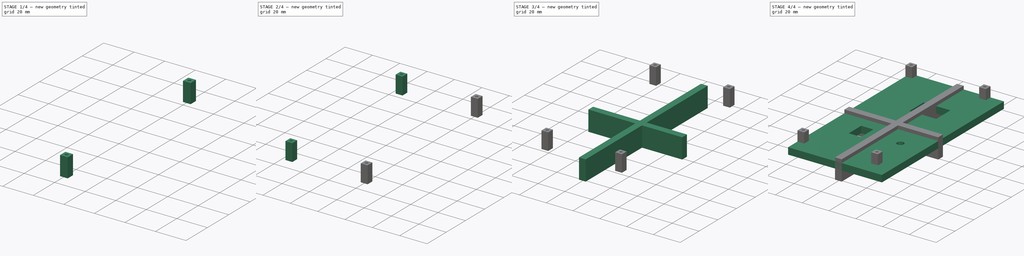
[diagram: build sequence overview — one tinted view per stage of 4, left to right]
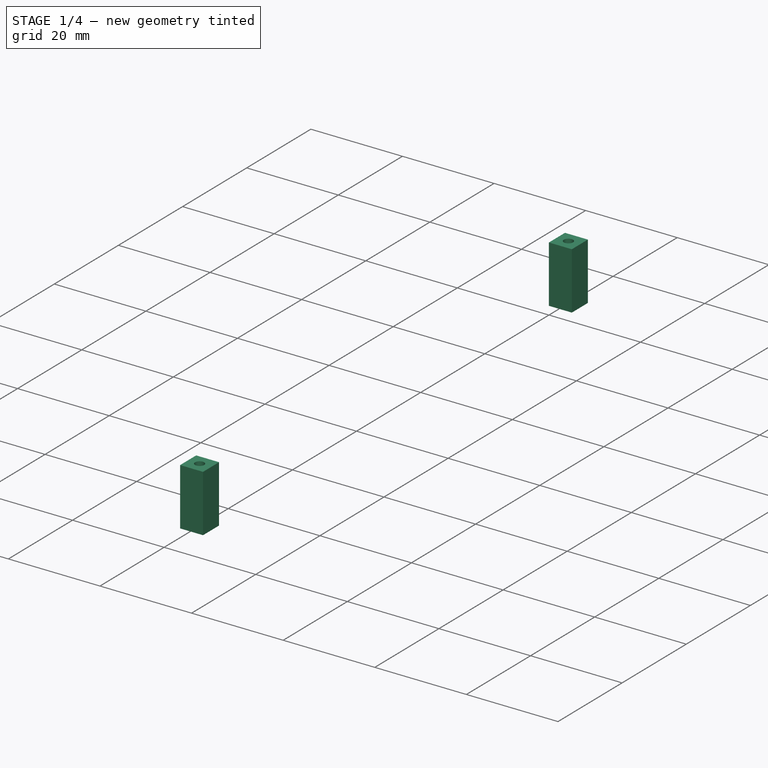
[diagram: stage 1 of 4 — iso view after this stage's code; geometry added in this stage tinted green]
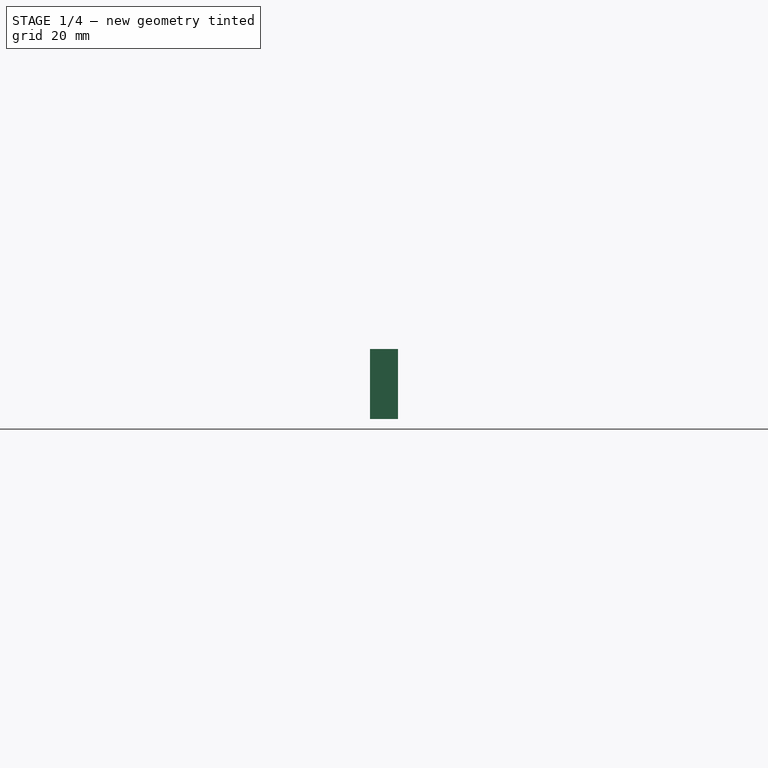
[diagram: stage 1 of 4 — front view after this stage's code; geometry added in this stage tinted green]
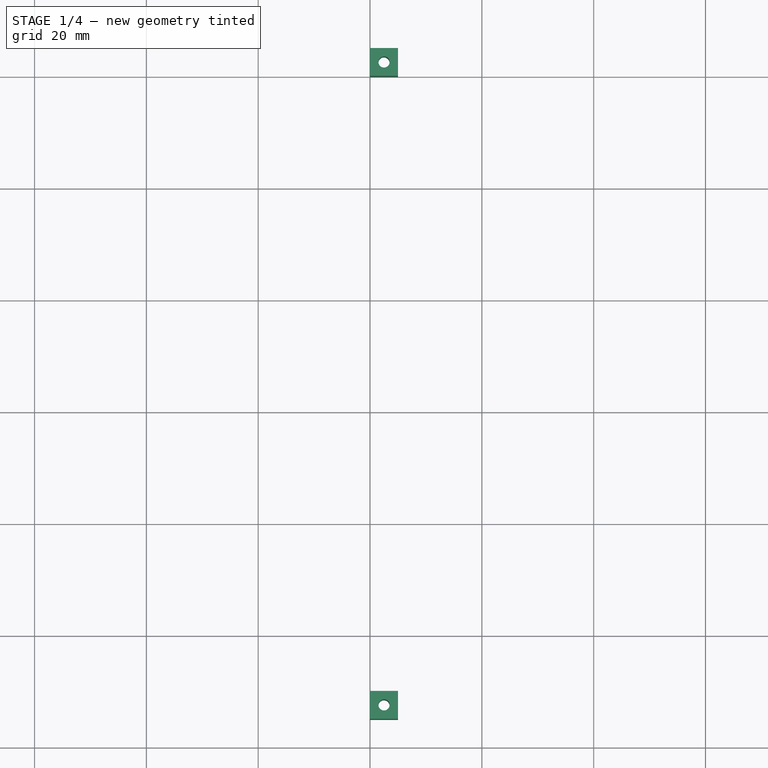
[diagram: stage 1 of 4 — top view after this stage's code; geometry added in this stage tinted green]
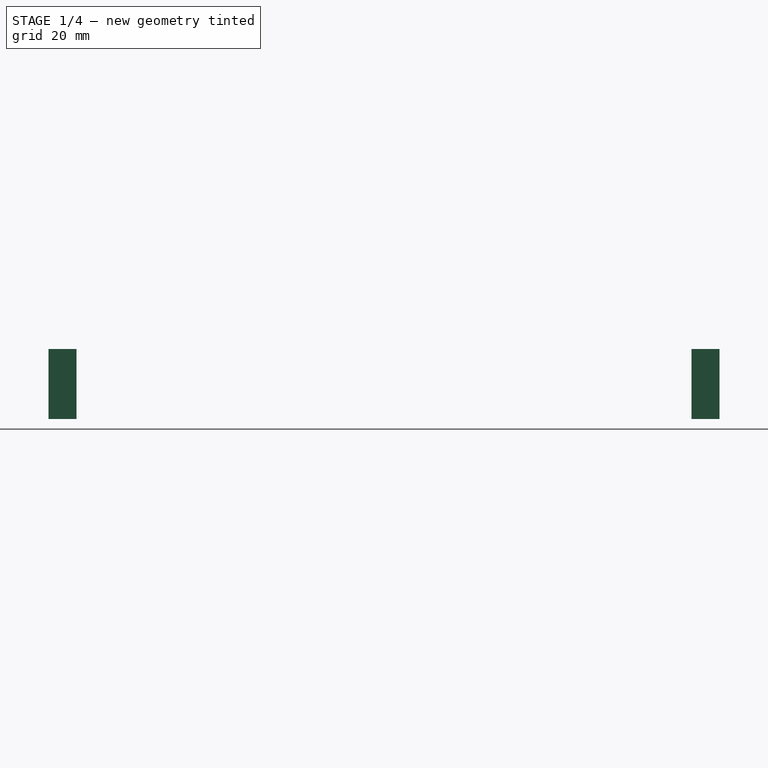
[diagram: stage 1 of 4 — right view after this stage's code; geometry added in this stage tinted green]
FCSTD DOCUMENT  (FreeCAD 0.19R24291 (Git))
Label: homework
License: All rights reserved
LicenseURL: http://en.wikipedia.org/wiki/All_rights_reserved
objects: Sketcher::SketchObject×9, PartDesign::Pad×9, PartDesign::Body×9
note: 36 computed .brp shape members not serialized (recipe doc carries the construction recipe); baked Part::Feature solids carry a one-line shape summary decoded from their .brp

FEATURE [PartDesign::Body] Body006  label="Hold left top"
  Group = -> [Sketch006,Pad006]
  Origin = -> Origin006
  Tip = -> Pad006
FEATURE [Sketcher::SketchObject] Sketch007
  FullyConstrained = true
  MapMode = 5
  Support = -> [XY_Plane008]
  sketch-geometry (5):
    g0: LineSegment StartX=20 StartY=65 StartZ=0 EndX=25 EndY=65 EndZ=0
    g1: LineSegment StartX=25 StartY=65 StartZ=0 EndX=25 EndY=60 EndZ=0
    g2: LineSegment StartX=25 StartY=60 StartZ=0 EndX=20 EndY=60 EndZ=0
    g3: LineSegment StartX=20 StartY=60 StartZ=0 EndX=20 EndY=65 EndZ=0
    g4: Circle CenterX=22.5 CenterY=62.5 CenterZ=0 NormalX=0 NormalY=0 NormalZ=1 AngleXU=0 Radius=1
  constraints (15):
    c: Coincident(g0,g1)
    c: Coincident(g1,g2)
    c: Coincident(g2,g3)
    c: Coincident(g3,g0)
    c: Horizontal(g0)
    c: Horizontal(g2)
    c: Vertical(g1)
    c: Vertical(g3)
    c: DistanceX(g-1,g0) = 20
    c: DistanceY(g-1,g2) = 60
    c: DistanceX(g0,g0) = 5
    c: DistanceY(g1,g1) = 5
    c: DistanceX(g0,g4) = 2.5
    c: DistanceY(g4,g0) = 2.5
    c: Diameter(g4) = 2
FEATURE [PartDesign::Pad] Pad007
  Direction = (1,1,1)
  Length = 12.5
  Length2 = 100
  Profile = -> Sketch007
  Type = 0
FEATURE [PartDesign::Body] Body008  label="Hold right bot"
  Group = -> [Sketch007,Pad007]
  Origin = -> Origin008
  Tip = -> Pad007
FEATURE [Sketcher::SketchObject] Sketch008
  FullyConstrained = true
  MapMode = 5
  Support = -> [XY_Plane009]
  sketch-geometry (5):
    g0: LineSegment StartX=20 StartY=-50 StartZ=0 EndX=25 EndY=-50 EndZ=0
    g1: LineSegment StartX=25 StartY=-50 StartZ=0 EndX=25 EndY=-55 EndZ=0
    g2: LineSegment StartX=25 StartY=-55 StartZ=0 EndX=20 EndY=-55 EndZ=0
    g3: LineSegment StartX=20 StartY=-55 StartZ=0 EndX=20 EndY=-50 EndZ=0
    g4: Circle CenterX=22.5 CenterY=-52.5 CenterZ=0 NormalX=0 NormalY=0 NormalZ=1 AngleXU=0 Radius=1
  constraints (15):
    c: Coincident(g0,g1)
    c: Coincident(g1,g2)
    c: Coincident(g2,g3)
    c: Coincident(g3,g0)
    c: Horizontal(g0)
    c: Horizontal(g2)
    c: Vertical(g1)
    c: Vertical(g3)
    c: DistanceY(g0,g-1) = 50
    c: DistanceX(g-1,g2) = 20
    c: DistanceX(g0,g0) = 5
    c: DistanceY(g1,g1) = 5
    c: DistanceY(g4,g0) = 2.5
    c: DistanceX(g0,g4) = 2.5
    c: Diameter(g4) = 2
FEATURE [PartDesign::Pad] Pad008
  Direction = (1,1,1)
  Length = 12.5
  Length2 = 100
  Profile = -> Sketch008
  Type = 0
FEATURE [PartDesign::Body] Body009  label="Hold right top"
  Group = -> [Sketch008,Pad008]
  Origin = -> Origin009
  Tip = -> Pad008
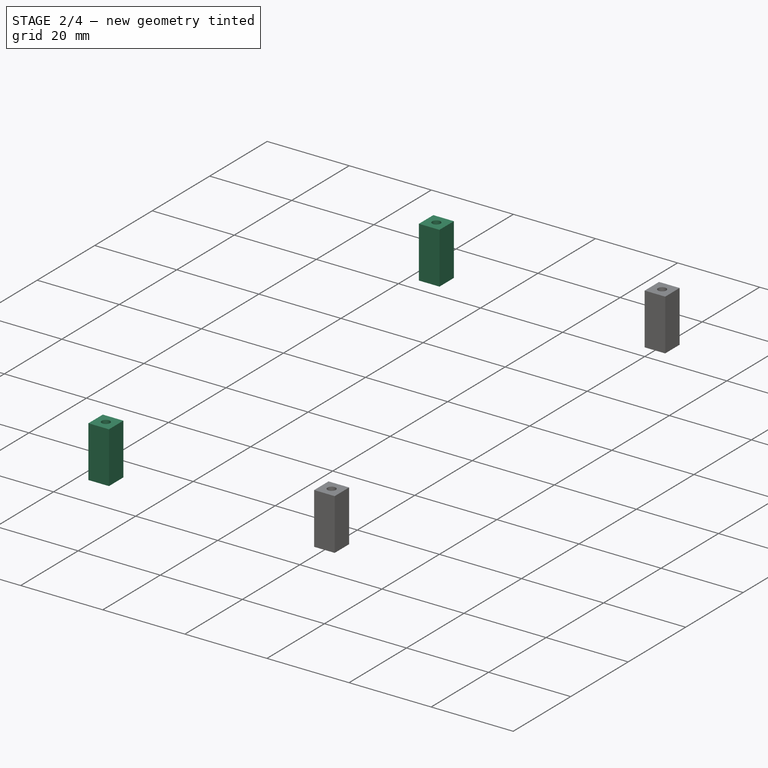
[diagram: stage 2 of 4 — iso view after this stage's code; geometry added in this stage tinted green]
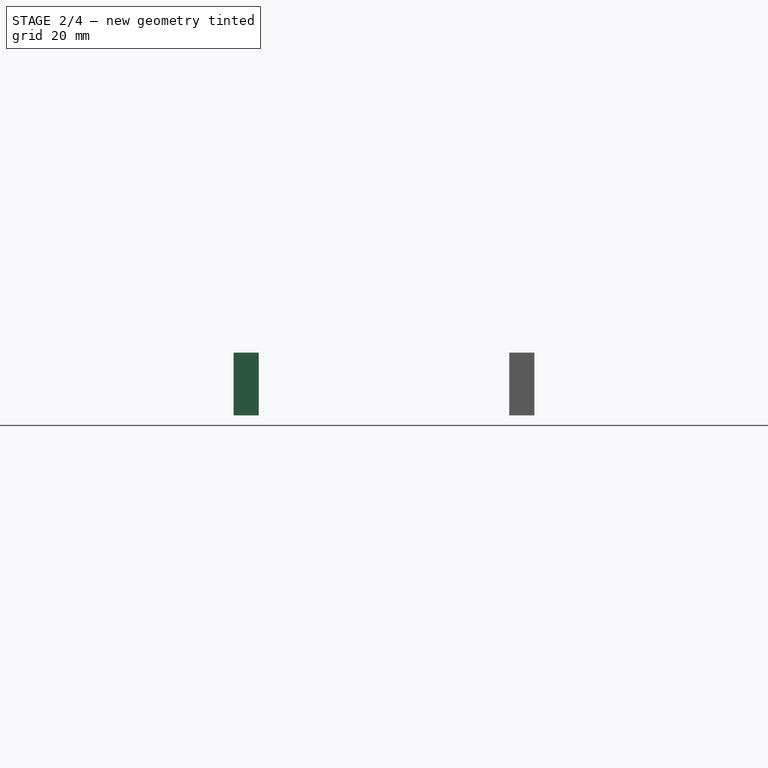
[diagram: stage 2 of 4 — front view after this stage's code; geometry added in this stage tinted green]
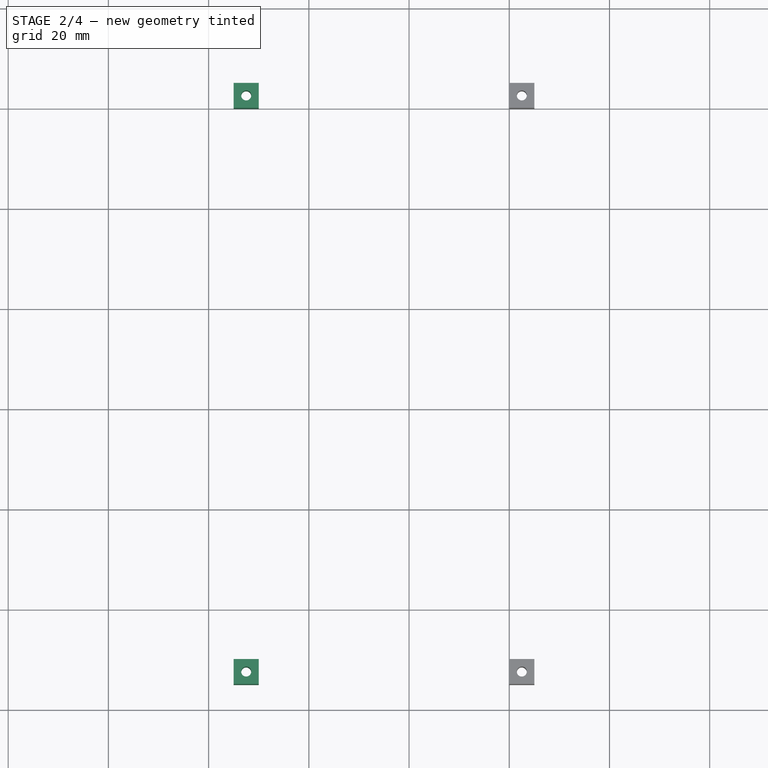
[diagram: stage 2 of 4 — top view after this stage's code; geometry added in this stage tinted green]
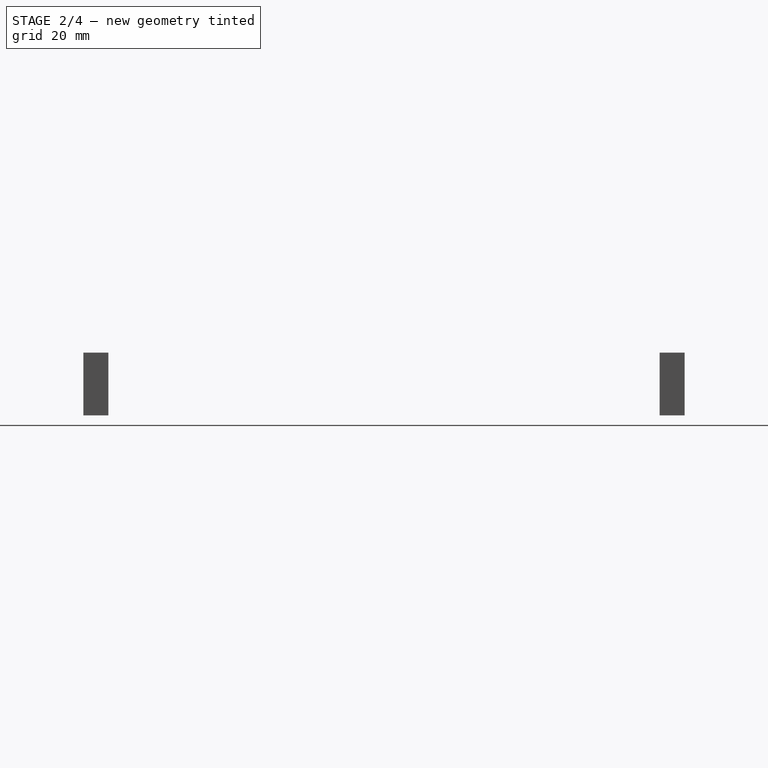
[diagram: stage 2 of 4 — right view after this stage's code; geometry added in this stage tinted green]
FEATURE [PartDesign::Body] Body004
  Group = -> [Sketch004,Pad004]
  Origin = -> Origin004
  Placement = pos=(-40,5,5) rot=(0,0,1;0rad)
  Tip = -> Pad004
FEATURE [Sketcher::SketchObject] Sketch005
  FullyConstrained = true
  MapMode = 5
  Support = -> [XY_Plane005]
  sketch-geometry (5):
    g0: LineSegment StartX=-35 StartY=65 StartZ=0 EndX=-30 EndY=65 EndZ=0
    g1: LineSegment StartX=-30 StartY=65 StartZ=0 EndX=-30 EndY=60 EndZ=0
    g2: LineSegment StartX=-30 StartY=60 StartZ=0 EndX=-35 EndY=60 EndZ=0
    g3: LineSegment StartX=-35 StartY=60 StartZ=0 EndX=-35 EndY=65 EndZ=0
    g4: Circle CenterX=-32.5 CenterY=62.5 CenterZ=0 NormalX=0 NormalY=0 NormalZ=1 AngleXU=0 Radius=1
  constraints (15):
    c: Coincident(g0,g1)
    c: Coincident(g1,g2)
    c: Coincident(g2,g3)
    c: Coincident(g3,g0)
    c: Horizontal(g0)
    c: Horizontal(g2)
    c: Vertical(g1)
    c: Vertical(g3)
    c: DistanceX(g0,g0) = 5
    c: DistanceX(g0,g-1) = 30
    c: DistanceY(g-1,g1) = 60
    c: DistanceY(g1,g1) = 5
    c: DistanceY(g4,g0) = 2.5
    c: DistanceX(g0,g4) = 2.5
    c: Diameter(g4) = 2
FEATURE [PartDesign::Pad] Pad005
  Direction = (1,1,1)
  Length = 12.5
  Length2 = 100
  Profile = -> Sketch005
  Type = 0
FEATURE [PartDesign::Body] Body005  label="Hold left bot"
  Group = -> [Sketch005,Pad005]
  Origin = -> Origin005
  Tip = -> Pad005
FEATURE [Sketcher::SketchObject] Sketch006
  FullyConstrained = true
  MapMode = 5
  Support = -> [XY_Plane006]
  sketch-geometry (5):
    g0: LineSegment StartX=-35 StartY=-50 StartZ=0 EndX=-30 EndY=-50 EndZ=0
    g1: LineSegment StartX=-30 StartY=-50 StartZ=0 EndX=-30 EndY=-55 EndZ=0
    g2: LineSegment StartX=-30 StartY=-55 StartZ=0 EndX=-35 EndY=-55 EndZ=0
    g3: LineSegment StartX=-35 StartY=-55 StartZ=0 EndX=-35 EndY=-50 EndZ=0
    g4: Circle CenterX=-32.5 CenterY=-52.5 CenterZ=0 NormalX=0 NormalY=0 NormalZ=1 AngleXU=0 Radius=1
  constraints (15):
    c: Coincident(g0,g1)
    c: Coincident(g1,g2)
    c: Coincident(g2,g3)
    c: Coincident(g3,g0)
    c: Horizontal(g0)
    c: Horizontal(g2)
    c: Vertical(g1)
    c: Vertical(g3)
    c: DistanceY(g0,g-1) = 50
    c: DistanceX(g1,g-1) = 30
    c: DistanceX(g0,g0) = 5
    c: DistanceY(g1,g1) = 5
    c: DistanceX(g0,g4) = 2.5
    c: DistanceY(g4,g0) = 2.5
    c: Diameter(g4) = 2
FEATURE [PartDesign::Pad] Pad006
  Direction = (1,1,1)
  Length = 12.5
  Length2 = 100
  Profile = -> Sketch006
  Type = 0
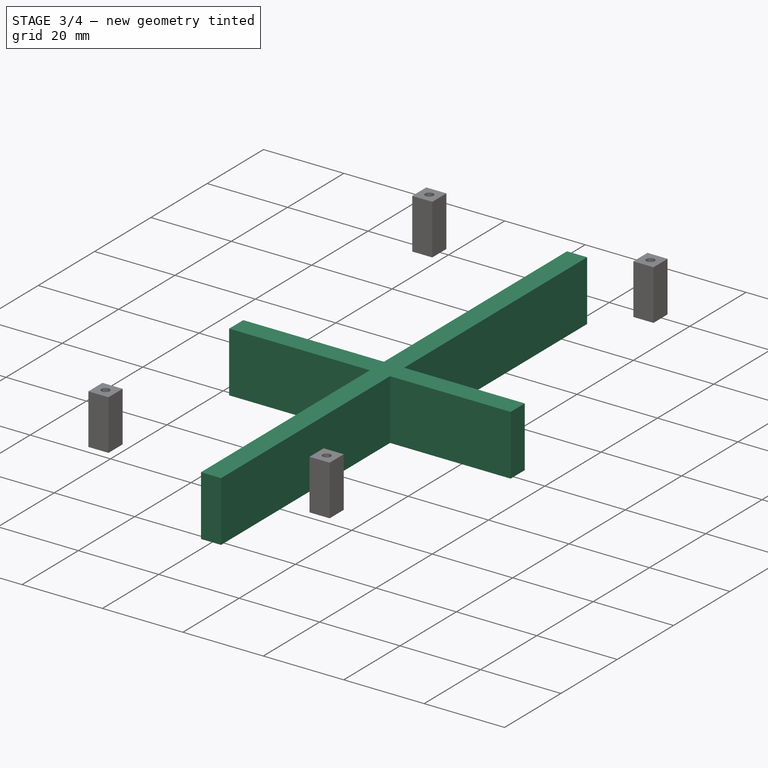
[diagram: stage 3 of 4 — iso view after this stage's code; geometry added in this stage tinted green]
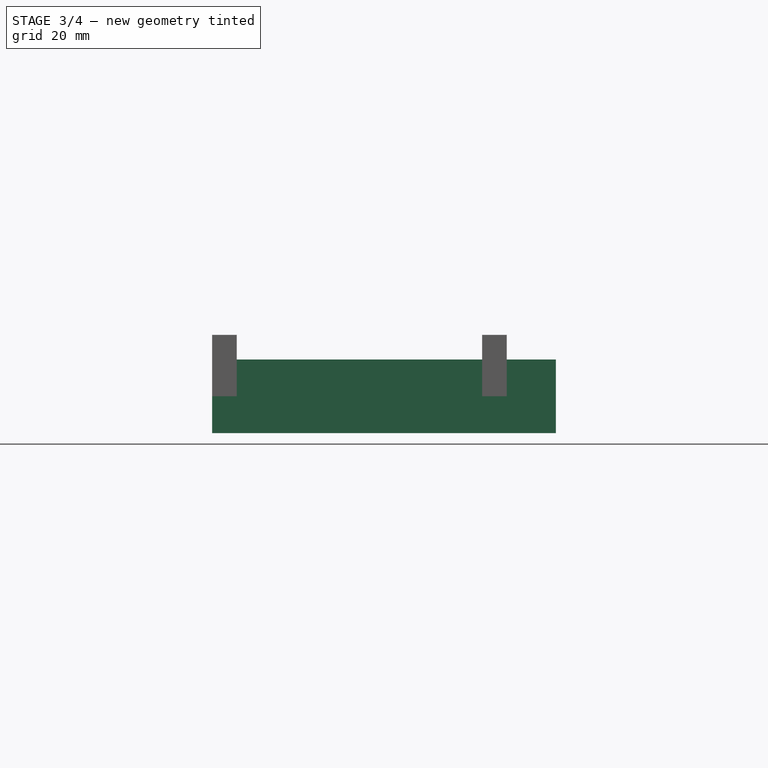
[diagram: stage 3 of 4 — front view after this stage's code; geometry added in this stage tinted green]
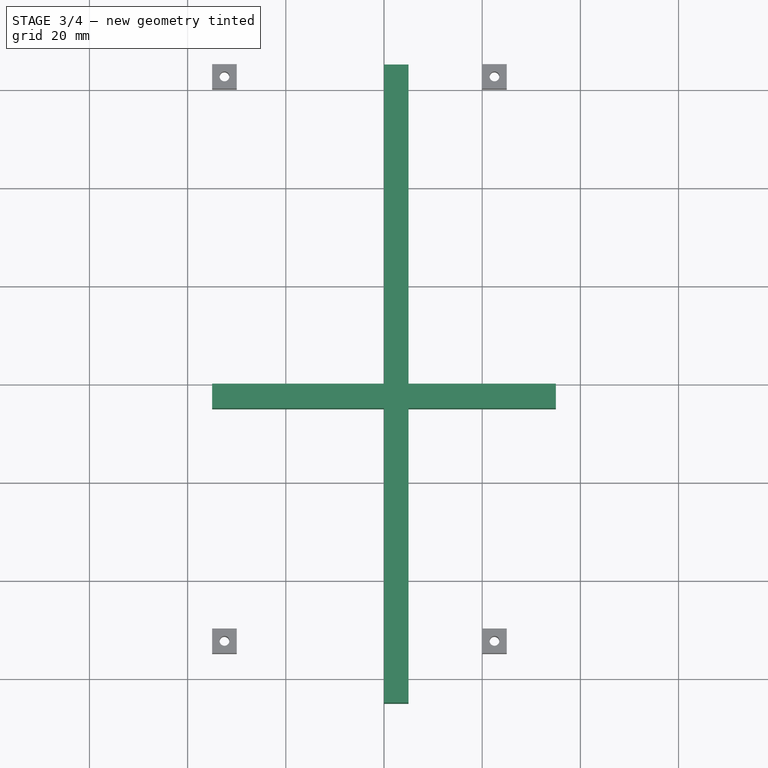
[diagram: stage 3 of 4 — top view after this stage's code; geometry added in this stage tinted green]
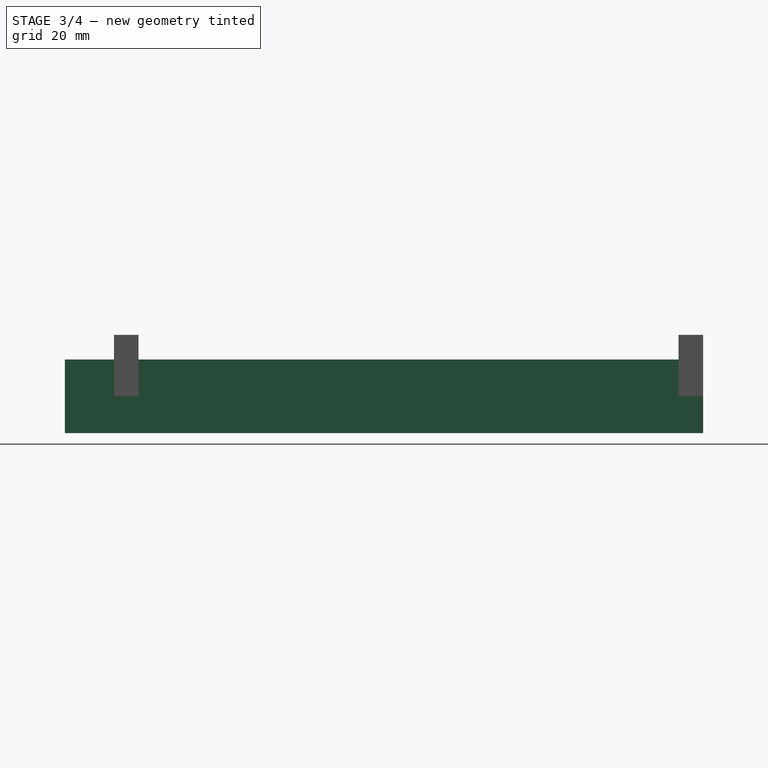
[diagram: stage 3 of 4 — right view after this stage's code; geometry added in this stage tinted green]
FEATURE [PartDesign::Body] Body001
  Group = -> [Sketch001,Pad001]
  Origin = -> Origin001
  Placement = pos=(-5,-55,5) rot=(0,0,1;0rad)
  Tip = -> Pad001
FEATURE [Sketcher::SketchObject] Sketch002
  FullyConstrained = true
  MapMode = 5
  Placement = pos=(0,0,0) rot=(0.57735,0.57735,0.57735;2.0944rad)
  Support = -> [YZ_Plane002]
  sketch-geometry (4):
    g0: LineSegment StartX=-65 StartY=7.5 StartZ=0 EndX=65 EndY=7.5 EndZ=0
    g1: LineSegment StartX=65 StartY=7.5 StartZ=0 EndX=65 EndY=-7.5 EndZ=0
    g2: LineSegment StartX=65 StartY=-7.5 StartZ=0 EndX=-65 EndY=-7.5 EndZ=0
    g3: LineSegment StartX=-65 StartY=-7.5 StartZ=0 EndX=-65 EndY=7.5 EndZ=0
  constraints (10):
    c: Coincident(g0,g1)
    c: Coincident(g1,g2)
    c: Coincident(g2,g3)
    c: Coincident(g3,g0)
    c: Horizontal(g0)
    c: Vertical(g3)
    c: DistanceX(g0,g0) = 130
    c: DistanceY(g3,g3) = 15
    c: Symmetric(g2,g1,g-2)
    c: Symmetric(g0,g1,g-1)
FEATURE [PartDesign::Pad] Pad002
  Direction = (1,1,1)
  Length = 5
  Length2 = 100
  Placement = pos=(0,0,0) rot=(0.57735,0.57735,0.57735;2.0944rad)
  Profile = -> Sketch002
  Type = 0
FEATURE [PartDesign::Body] Body002
  Group = -> [Sketch002,Pad002]
  Origin = -> Origin002
  Placement = pos=(25,5,5) rot=(0,0,1;0rad)
  Tip = -> Pad002
FEATURE [Sketcher::SketchObject] Sketch003
  FullyConstrained = true
  MapMode = 5
  Placement = pos=(0,0,0) rot=(1,0,0;1.5708rad)
  Support = -> [XZ_Plane003]
  sketch-geometry (4):
    g0: LineSegment StartX=-35 StartY=7.5 StartZ=0 EndX=35 EndY=7.5 EndZ=0
    g1: LineSegment StartX=35 StartY=7.5 StartZ=0 EndX=35 EndY=-7.5 EndZ=0
    g2: LineSegment StartX=35 StartY=-7.5 StartZ=0 EndX=-35 EndY=-7.5 EndZ=0
    g3: LineSegment StartX=-35 StartY=-7.5 StartZ=0 EndX=-35 EndY=7.5 EndZ=0
  constraints (10):
    c: Coincident(g0,g1)
    c: Coincident(g1,g2)
    c: Coincident(g2,g3)
    c: Coincident(g3,g0)
    c: Horizontal(g0)
    c: Vertical(g3)
    c: Symmetric(g2,g1,g-2)
    c: Symmetric(g0,g1,g-1)
    c: DistanceX(g0,g0) = 70
    c: DistanceY(g3,g3) = 15
FEATURE [PartDesign::Pad] Pad003
  Direction = (1,1,1)
  Length = 5
  Length2 = 100
  Placement = pos=(0,0,0) rot=(1,0,0;1.5708rad)
  Profile = -> Sketch003
  Type = 0
FEATURE [PartDesign::Body] Body003
  Group = -> [Sketch003,Pad003]
  Origin = -> Origin003
  Placement = pos=(-5,70,5) rot=(0,0,1;0rad)
  Tip = -> Pad003
FEATURE [Sketcher::SketchObject] Sketch004
  FullyConstrained = true
  MapMode = 5
  Placement = pos=(0,0,0) rot=(0.57735,0.57735,0.57735;2.0944rad)
  Support = -> [YZ_Plane004]
  sketch-geometry (4):
    g0: LineSegment StartX=-65 StartY=7.5 StartZ=0 EndX=65 EndY=7.5 EndZ=0
    g1: LineSegment StartX=65 StartY=7.5 StartZ=0 EndX=65 EndY=-7.5 EndZ=0
    g2: LineSegment StartX=65 StartY=-7.5 StartZ=0 EndX=-65 EndY=-7.5 EndZ=0
    g3: LineSegment StartX=-65 StartY=-7.5 StartZ=0 EndX=-65 EndY=7.5 EndZ=0
  constraints (10):
    c: Coincident(g0,g1)
    c: Coincident(g1,g2)
    c: Coincident(g2,g3)
    c: Coincident(g3,g0)
    c: Horizontal(g0)
    c: Vertical(g3)
    c: Symmetric(g2,g1,g-2)
    c: Symmetric(g0,g1,g-1)
    c: DistanceX(g0,g0) = 130
    c: DistanceY(g3,g3) = 15
FEATURE [PartDesign::Pad] Pad004
  Direction = (1,1,1)
  Length = 5
  Length2 = 100
  Placement = pos=(0,0,0) rot=(0.57735,0.57735,0.57735;2.0944rad)
  Profile = -> Sketch004
  Type = 0
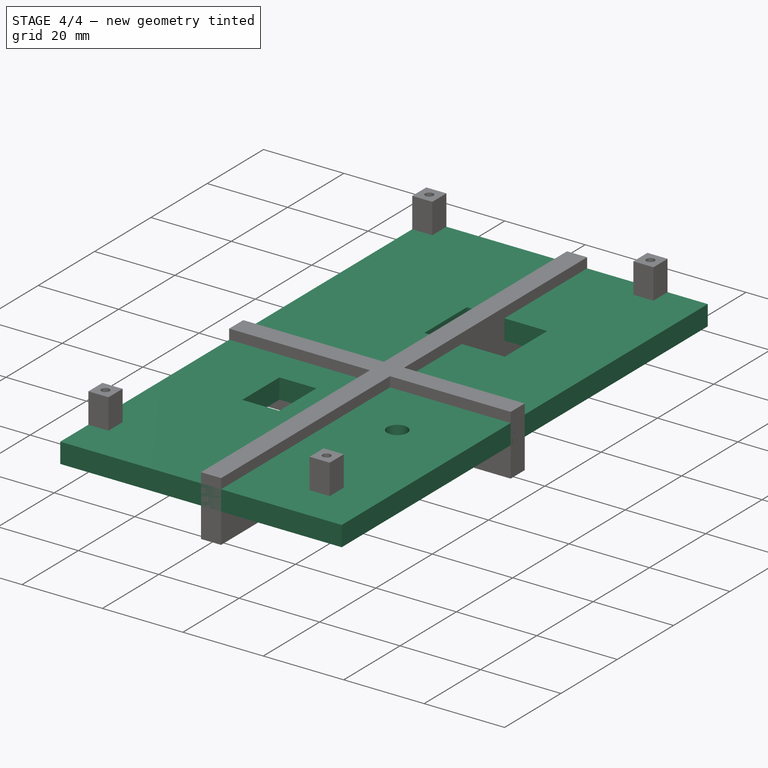
[diagram: stage 4 of 4 — iso view after this stage's code; geometry added in this stage tinted green]
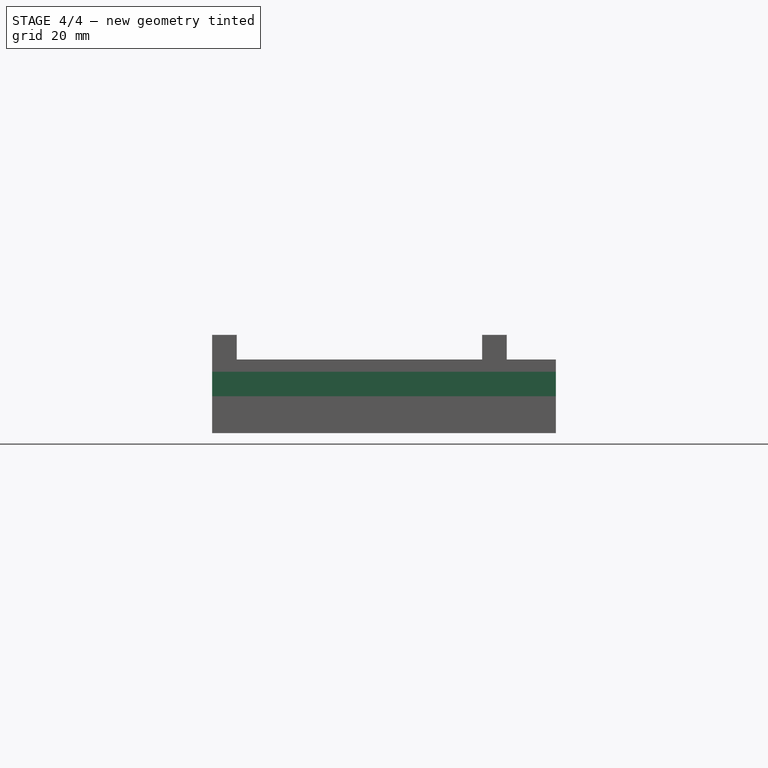
[diagram: stage 4 of 4 — front view after this stage's code; geometry added in this stage tinted green]
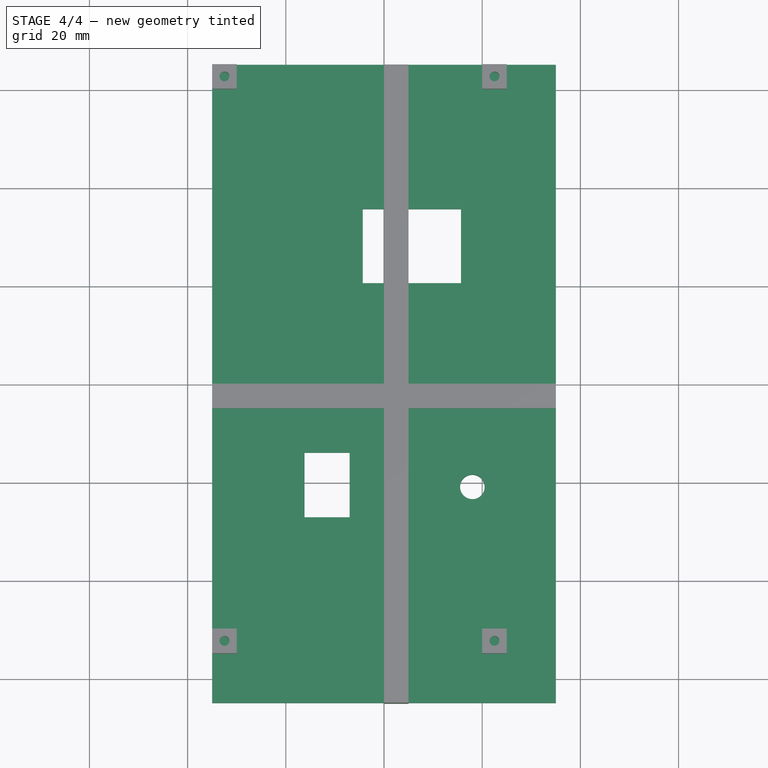
[diagram: stage 4 of 4 — top view after this stage's code; geometry added in this stage tinted green]
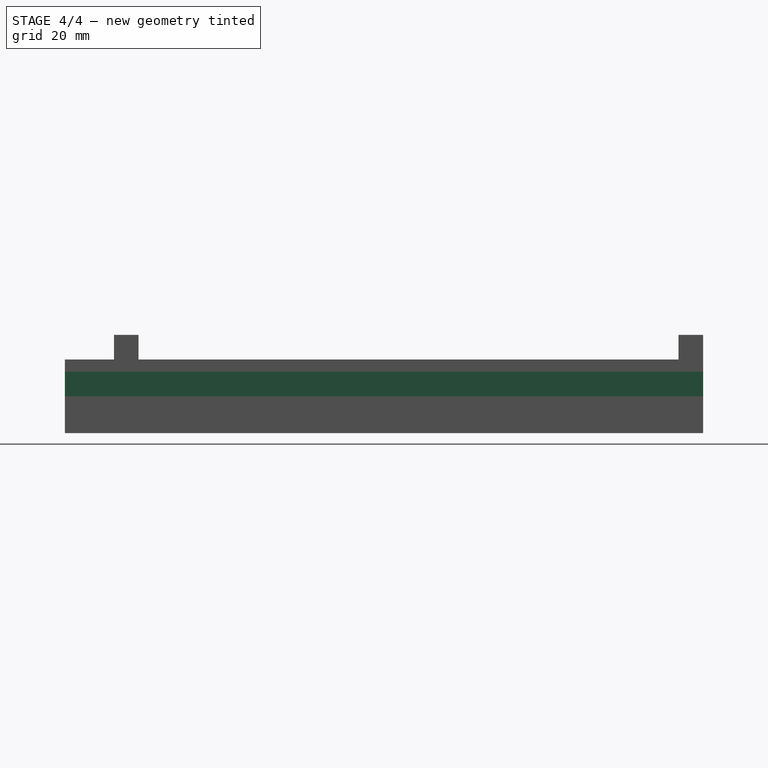
[diagram: stage 4 of 4 — right view after this stage's code; geometry added in this stage tinted green]
FEATURE [Sketcher::SketchObject] Sketch
  FullyConstrained = true
  MapMode = 5
  Support = -> [XY_Plane]
  sketch-geometry (13):
    g0: LineSegment StartX=-35 StartY=65 StartZ=0 EndX=35 EndY=65 EndZ=0
    g1: LineSegment StartX=35 StartY=65 StartZ=0 EndX=35 EndY=-65 EndZ=0
    g2: LineSegment StartX=35 StartY=-65 StartZ=0 EndX=-35 EndY=-65 EndZ=0
    g3: LineSegment StartX=-35 StartY=-65 StartZ=0 EndX=-35 EndY=65 EndZ=0
    g4: Circle CenterX=18 CenterY=-21 CenterZ=0 NormalX=0 NormalY=0 NormalZ=1 AngleXU=0 Radius=2.5
    g5: LineSegment StartX=-16.2 StartY=-14 StartZ=0 EndX=-7 EndY=-14 EndZ=0
    g6: LineSegment StartX=-7 StartY=-14 StartZ=0 EndX=-7 EndY=-27.2 EndZ=0
    g7: LineSegment StartX=-7 StartY=-27.2 StartZ=0 EndX=-16.2 EndY=-27.2 EndZ=0
    g8: LineSegment StartX=-16.2 StartY=-27.2 StartZ=0 EndX=-16.2 EndY=-14 EndZ=0
    g9: LineSegment StartX=-4.32 StartY=35.61 StartZ=0 EndX=15.68 EndY=35.61 EndZ=0
    g10: LineSegment StartX=15.68 StartY=35.61 StartZ=0 EndX=15.68 EndY=20.51 EndZ=0
    g11: LineSegment StartX=15.68 StartY=20.51 StartZ=0 EndX=-4.32 EndY=20.51 EndZ=0
    g12: LineSegment StartX=-4.32 StartY=20.51 StartZ=0 EndX=-4.32 EndY=35.61 EndZ=0
  constraints (37):
    c: Coincident(g0,g1)
    c: Coincident(g1,g2)
    c: Coincident(g2,g3)
    c: Coincident(g3,g0)
    c: Horizontal(g0)
    c: Vertical(g3)
    c: Symmetric(g2,g1,g-2)
    c: DistanceX(g0,g0) = 70
    c: DistanceY(g3,g3) = 130
    c: Symmetric(g0,g1,g-1)
    c: DistanceY(g4,g-1) = 21
    c: DistanceX(g-1,g4) = 18
    c: Diameter(g4) = 5
    c: Coincident(g5,g6)
    c: Coincident(g6,g7)
    c: Coincident(g7,g8)
    c: Coincident(g8,g5)
    c: Horizontal(g5)
    c: Horizontal(g7)
    c: Vertical(g6)
    c: Vertical(g8)
    c: DistanceX(g5,g-1) = 7
    c: DistanceY(g5,g-1) = 14
    c: DistanceX(g7,g7) = 9.2
    c: DistanceY(g8,g8) = 13.2
    c: Coincident(g9,g10)
    c: Coincident(g10,g11)
    c: Coincident(g11,g12)
    c: Coincident(g12,g9)
    c: Horizontal(g9)
    c: Horizontal(g11)
    c: Vertical(g10)
    c: Vertical(g12)
    c: DistanceY(g10,g10) = 15.1
    c: DistanceY(g-1,g11) = 20.51
    c: DistanceX(g9,g9) = 20
    c: DistanceX(g9,g-1) = 4.32
FEATURE [PartDesign::Pad] Pad
  Direction = (1,1,1)
  Length = 5
  Length2 = 100
  Profile = -> Sketch
  Type = 0
FEATURE [PartDesign::Body] Body
  Group = -> [Sketch,Pad]
  Origin = -> Origin
  Placement = pos=(-5,5,-2.5) rot=(0,0,1;0rad)
  Tip = -> Pad
FEATURE [Sketcher::SketchObject] Sketch001
  FullyConstrained = true
  MapMode = 5
  Placement = pos=(0,0,0) rot=(1,0,0;1.5708rad)
  Support = -> [XZ_Plane001]
  sketch-geometry (4):
    g0: LineSegment StartX=-35 StartY=-7.5 StartZ=0 EndX=35 EndY=-7.5 EndZ=0
    g1: LineSegment StartX=35 StartY=-7.5 StartZ=0 EndX=35 EndY=7.5 EndZ=0
    g2: LineSegment StartX=35 StartY=7.5 StartZ=0 EndX=-35 EndY=7.5 EndZ=0
    g3: LineSegment StartX=-35 StartY=7.5 StartZ=0 EndX=-35 EndY=-7.5 EndZ=0
  constraints (10):
    c: Coincident(g0,g1)
    c: Coincident(g1,g2)
    c: Coincident(g2,g3)
    c: Coincident(g3,g0)
    c: Horizontal(g0)
    c: Vertical(g3)
    c: Symmetric(g2,g1,g-2)
    c: Symmetric(g0,g1,g-1)
    c: DistanceX(g2,g2) = 70
    c: DistanceY(g3,g3) = 15
FEATURE [PartDesign::Pad] Pad001
  Direction = (1,1,1)
  Length = 5
  Length2 = 100
  Placement = pos=(0,0,0) rot=(1,0,0;1.5708rad)
  Profile = -> Sketch001
  Type = 0
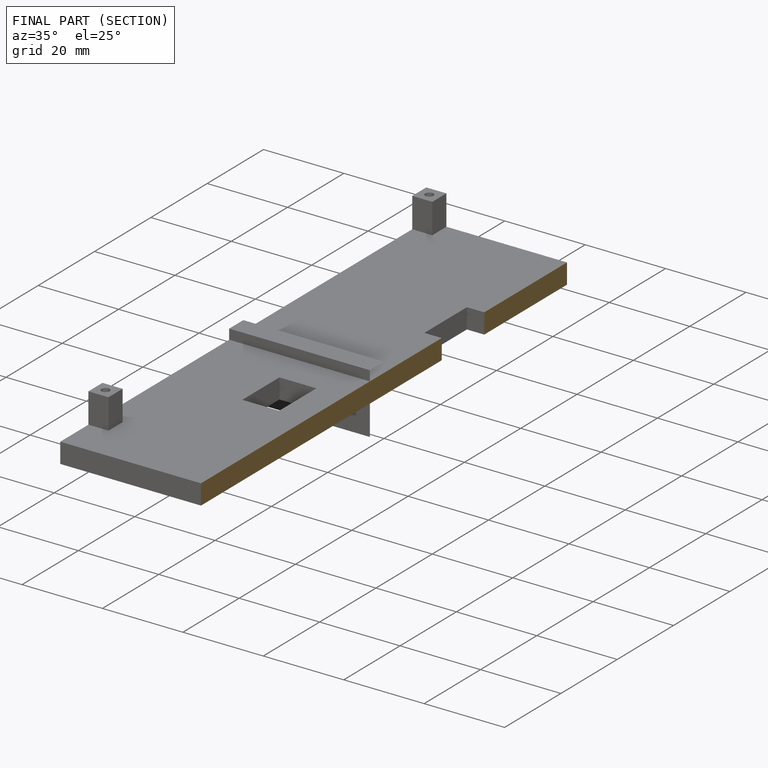
[diagram: finished part — half-section view (interior)]
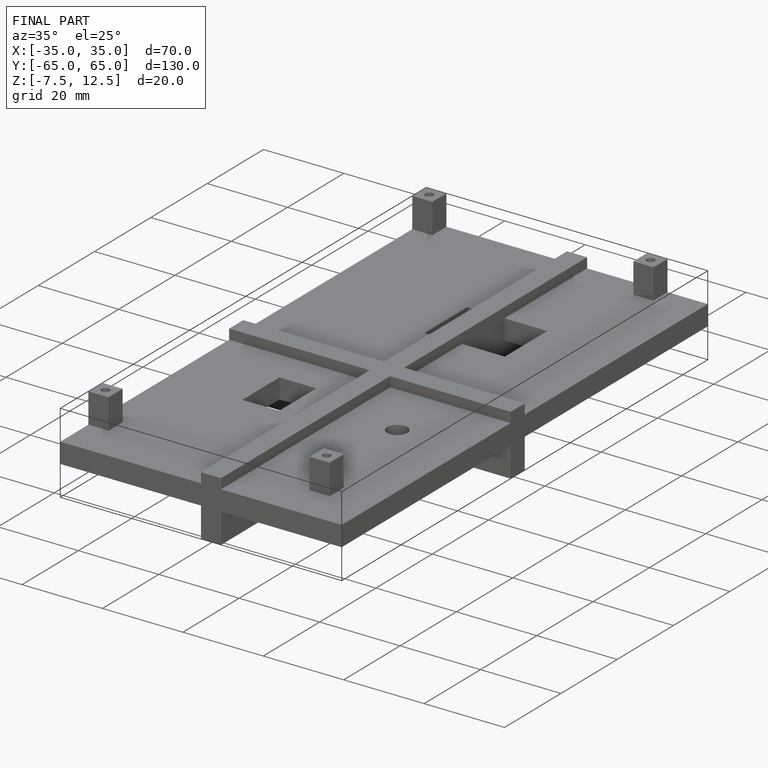
[diagram: finished part — iso view with bounding-box wireframe]
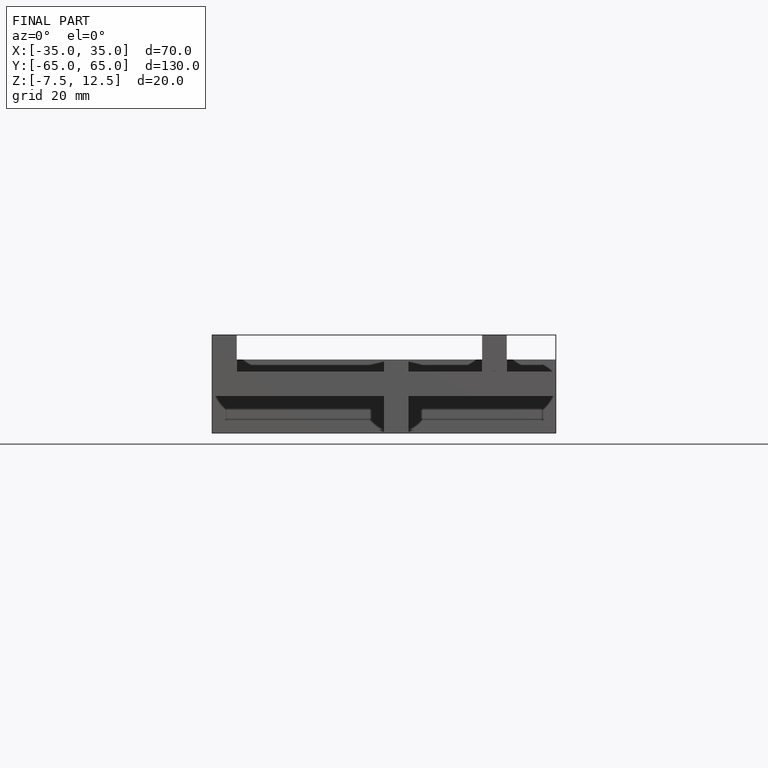
[diagram: finished part — front view with bounding-box wireframe]
